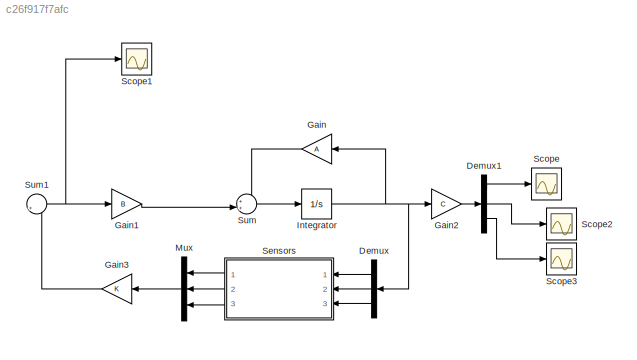
MODEL slx_c26f917f7afc
KIND model
CONFIG AbsTol = auto
CONFIG EnableMultiTasking = off
CONFIG FixedStep = auto
CONFIG MaxStep = 0.00001
CONFIG MinStep = auto
CONFIG RelTol = 1e-8
CONFIG SampleTimeConstraint = Unconstrained
CONFIG Solver = ode45
CONFIG SolverName = ode45
CONFIG StartTime = 0.0
CONFIG StopTime = 10
BLOCK [Demux] Demux
  DisplayOption = bar
  Outputs = 3
  Ports = [1, 3]
BLOCK [Demux] Demux1
  DisplayOption = bar
  Outputs = 3
  Ports = [1, 3]
BLOCK [Gain] Gain
  Gain = A
  Multiplication = Matrix(K*u)
  OutDataTypeStr = Inherit: Inherit via internal rule
  ParamDataTypeStr = Inherit: Inherit via internal rule
  SaturateOnIntegerOverflow = off
BLOCK [Gain] Gain1
  Gain = B
  Multiplication = Matrix(K*u)
  OutDataTypeStr = Inherit: Inherit via internal rule
  ParamDataTypeStr = Inherit: Inherit via internal rule
  SaturateOnIntegerOverflow = off
BLOCK [Gain] Gain2
  Gain = C
  Multiplication = Matrix(K*u)
  OutDataTypeStr = Inherit: Inherit via internal rule
  ParamDataTypeStr = Inherit: Inherit via internal rule
  SaturateOnIntegerOverflow = off
BLOCK [Gain] Gain3
  Gain = K
  Multiplication = Matrix(K*u)
  OutDataTypeStr = Inherit: Inherit via internal rule
  ParamDataTypeStr = Inherit: Inherit via internal rule
  SaturateOnIntegerOverflow = off
BLOCK [Integrator] Integrator
  InitialCondition = [deg2rad(5); 0; 0]
  Ports = [1, 1]
BLOCK [Mux] Mux
  DisplayOption = bar
  Inputs = 3
  Ports = [3, 1]
BLOCK [Scope] Scope
  Floating = off
  NumInputPorts = 1
  Ports = [1]
  ScopeSpecificationString = Simulink.scopes.TimeScopeBlockCfg('CurrentConfiguration', extmgr.ConfigurationSet(extmgr.Configuration('Core','General UI',true),extmgr.Configuration('Core','Source UI',true),extmgr.Configuration('Sources','WiredSimulink',true),extmgr.Configuration('Visuals','Time Domain',true,'SerializedDisplays',{struct('MinYLimReal','-0.03505','MaxYLimReal','0.00896','YLabelReal','','MinYLimMag','0.00000','MaxY...<+1372ch>
BLOCK [Scope] Scope1
  Floating = off
  NumInputPorts = 1
  Ports = [1]
  ScopeSpecificationString = Simulink.scopes.TimeScopeBlockCfg('CurrentConfiguration', extmgr.ConfigurationSet(extmgr.Configuration('Core','General UI',true),extmgr.Configuration('Core','Source UI',true),extmgr.Configuration('Sources','WiredSimulink',true,'DataLoggingVariableName','ScopeData1'),extmgr.Configuration('Visuals','Time Domain',true,'SerializedDisplays',{struct('MinYLimReal','-0.24512','MaxYLimReal','0.54632','YLab...<+1388ch>
BLOCK [Scope] Scope2
  Floating = off
  NumInputPorts = 1
  Ports = [1]
  ScopeSpecificationString = Simulink.scopes.TimeScopeBlockCfg('CurrentConfiguration', extmgr.ConfigurationSet(extmgr.Configuration('Core','General UI',true),extmgr.Configuration('Core','Source UI',true),extmgr.Configuration('Sources','WiredSimulink',true,'DataLoggingVariableName','ScopeData2'),extmgr.Configuration('Visuals','Time Domain',true,'SerializedDisplays',{struct('MinYLimReal','-1.15518','MaxYLimReal','0.25234','YLab...<+1438ch>
BLOCK [Scope] Scope3
  Floating = off
  NumInputPorts = 1
  Ports = [1]
  ScopeSpecificationString = Simulink.scopes.TimeScopeBlockCfg('CurrentConfiguration', extmgr.ConfigurationSet(extmgr.Configuration('Core','General UI',true),extmgr.Configuration('Core','Source UI',true),extmgr.Configuration('Sources','WiredSimulink',true,'DataLoggingVariableName','ScopeData3'),extmgr.Configuration('Visuals','Time Domain',true,'SerializedDisplays',{struct('MinYLimReal','-2.94296','MaxYLimReal','26.48662','YLa...<+1415ch>
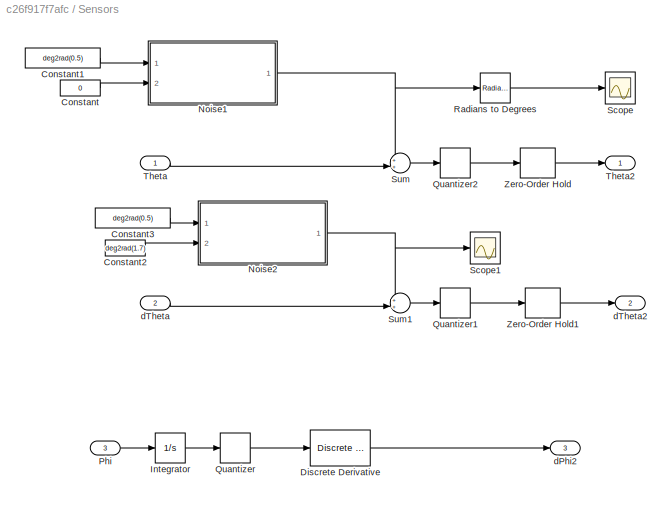
BLOCK [SubSystem] Sensors
  Ports = [3, 3]
  RequestExecContextInheritance = off
BLOCK [Constant] Sensors/Constant
  Value = 0
BLOCK [Constant] Sensors/Constant1
  Value = deg2rad(0.5)
BLOCK [Constant] Sensors/Constant2
  Value = deg2rad(1.7)
BLOCK [Constant] Sensors/Constant3
  Value = deg2rad(0.5)
BLOCK [Reference] Sensors/Discrete Derivative  REF=simulink/Discrete/Discrete Derivative
  Ports = [1, 1]
  SourceBlock = simulink/Discrete/Discrete Derivative
  SourceProductBaseCode = SL
  SourceProductName = Simulink
  SourceType = Discrete Derivative
BLOCK [Integrator] Sensors/Integrator
  Ports = [1, 1]
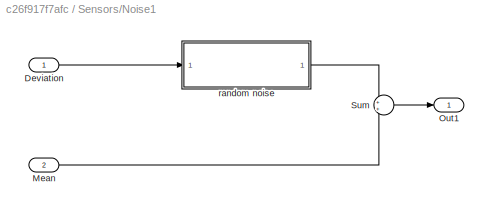
BLOCK [SubSystem] Sensors/Noise1
  Ports = [2, 1]
  RequestExecContextInheritance = off
BLOCK [Inport] Sensors/Noise1/Deviation
  IconDisplay = Port number
BLOCK [Inport] Sensors/Noise1/Mean
  IconDisplay = Port number
  Port = 2
BLOCK [Outport] Sensors/Noise1/Out1
  IconDisplay = Port number
BLOCK [Sum] Sensors/Noise1/Sum
  IconShape = round
  InputSameDT = off
  OutDataTypeStr = Inherit: Inherit via internal rule
  Ports = [2, 1]
  SaturateOnIntegerOverflow = off
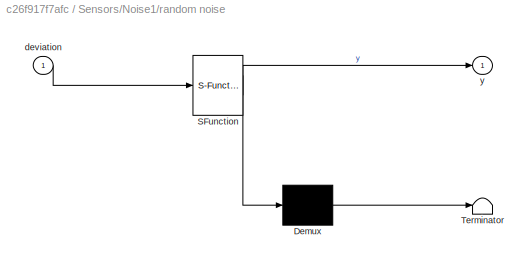
BLOCK [SubSystem] Sensors/Noise1/random noise
  ErrorFcn = Stateflow.Translate.translate
  PermitHierarchicalResolution = ExplicitOnly
  Ports = [1, 1]
  RequestExecContextInheritance = off
  SFBlockType = MATLAB Function
  SystemSampleTime = 0.001
  TreatAsAtomicUnit = on
BLOCK [Demux] Sensors/Noise1/random noise/ Demux 
  Outputs = 1
  Ports = [1, 1]
BLOCK [S-Function] Sensors/Noise1/random noise/ SFunction 
  EnableBusSupport = on
  FunctionName = sf_sfun
  PortCounts = [1 2]
  Ports = [1, 2]
  SFcnIsStateOwnerBlock = off
  SFunctionDeploymentMode = off
  Tag = Stateflow S-Function 2
BLOCK [Terminator] Sensors/Noise1/random noise/ Terminator 
BLOCK [Inport] Sensors/Noise1/random noise/deviation
  IconDisplay = Port number
BLOCK [Outport] Sensors/Noise1/random noise/y
  IconDisplay = Port number
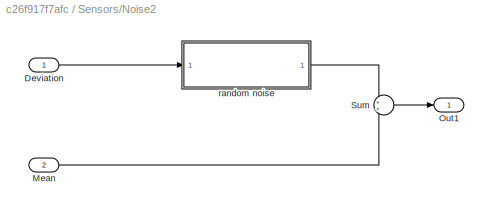
BLOCK [SubSystem] Sensors/Noise2
  Ports = [2, 1]
  RequestExecContextInheritance = off
BLOCK [Inport] Sensors/Noise2/Deviation
  IconDisplay = Port number
BLOCK [Inport] Sensors/Noise2/Mean
  IconDisplay = Port number
  Port = 2
BLOCK [Outport] Sensors/Noise2/Out1
  IconDisplay = Port number
BLOCK [Sum] Sensors/Noise2/Sum
  IconShape = round
  InputSameDT = off
  OutDataTypeStr = Inherit: Inherit via internal rule
  Ports = [2, 1]
  SaturateOnIntegerOverflow = off
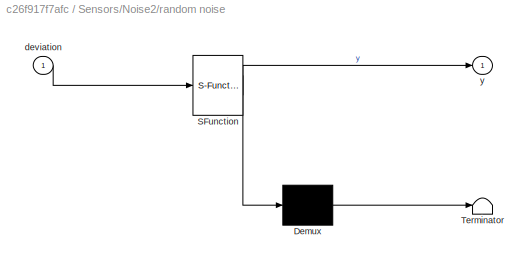
BLOCK [SubSystem] Sensors/Noise2/random noise
  ErrorFcn = Stateflow.Translate.translate
  PermitHierarchicalResolution = ExplicitOnly
  Ports = [1, 1]
  RequestExecContextInheritance = off
  SFBlockType = MATLAB Function
  SystemSampleTime = 0.001
  TreatAsAtomicUnit = on
BLOCK [Demux] Sensors/Noise2/random noise/ Demux 
  Outputs = 1
  Ports = [1, 1]
BLOCK [S-Function] Sensors/Noise2/random noise/ SFunction 
  EnableBusSupport = on
  FunctionName = sf_sfun
  PortCounts = [1 2]
  Ports = [1, 2]
  SFcnIsStateOwnerBlock = off
  SFunctionDeploymentMode = off
  Tag = Stateflow S-Function 1
BLOCK [Terminator] Sensors/Noise2/random noise/ Terminator 
BLOCK [Inport] Sensors/Noise2/random noise/deviation
  IconDisplay = Port number
BLOCK [Outport] Sensors/Noise2/random noise/y
  IconDisplay = Port number
BLOCK [Inport] Sensors/Phi
  IconDisplay = Port number
  Port = 3
BLOCK [Quantizer] Sensors/Quantizer
  QuantizationInterval = 0.00001
BLOCK [Quantizer] Sensors/Quantizer1
  QuantizationInterval = 0.00001
BLOCK [Quantizer] Sensors/Quantizer2
  QuantizationInterval = 0.00001
BLOCK [Reference] Sensors/Radians to Degrees  REF=simulink_extras/Transformations/Radians
to Degrees
  Ports = [1, 1]
  SourceBlock = simulink_extras/Transformations/Radians\nto Degrees
  SourceProductBaseCode = SL
  SourceProductName = Simulink
  SourceType = RadiansToDegrees
BLOCK [Scope] Sensors/Scope
  Floating = off
  NumInputPorts = 1
  Ports = [1]
  ScopeSpecificationString = Simulink.scopes.TimeScopeBlockCfg('CurrentConfiguration', extmgr.ConfigurationSet(extmgr.Configuration('Core','General UI',true),extmgr.Configuration('Core','Source UI',true),extmgr.Configuration('Sources','WiredSimulink',true,'DataLoggingVariableName','ScopeData1'),extmgr.Configuration('Visuals','Time Domain',true,'SerializedDisplays',{struct('MinYLimReal','-2.32863','MaxYLimReal','2.24673','YLab...<+1402ch>
BLOCK [Scope] Sensors/Scope1
  Floating = off
  NumInputPorts = 1
  Ports = [1]
  ScopeSpecificationString = Simulink.scopes.TimeScopeBlockCfg('CurrentConfiguration', extmgr.ConfigurationSet(extmgr.Configuration('Core','General UI',true),extmgr.Configuration('Core','Source UI',true),extmgr.Configuration('Sources','WiredSimulink',true,'DataLoggingVariableName','ScopeData1'),extmgr.Configuration('Visuals','Time Domain',true,'SerializedDisplays',{struct('MinYLimReal','-0.01097','MaxYLimReal','0.06888','YLab...<+1365ch>
BLOCK [Sum] Sensors/Sum
  IconShape = round
  InputSameDT = off
  Inputs = ++|
  OutDataTypeStr = Inherit: Inherit via internal rule
  Ports = [2, 1]
  SaturateOnIntegerOverflow = off
BLOCK [Sum] Sensors/Sum1
  IconShape = round
  InputSameDT = off
  Inputs = ++|
  OutDataTypeStr = Inherit: Inherit via internal rule
  Ports = [2, 1]
  SaturateOnIntegerOverflow = off
BLOCK [Inport] Sensors/Theta
  IconDisplay = Port number
BLOCK [Outport] Sensors/Theta2
  IconDisplay = Port number
BLOCK [ZeroOrderHold] Sensors/Zero-Order Hold
  SampleTime = 1/1000
BLOCK [ZeroOrderHold] Sensors/Zero-Order Hold1
  SampleTime = 1/1000
BLOCK [Outport] Sensors/dPhi2
  IconDisplay = Port number
  Port = 3
BLOCK [Inport] Sensors/dTheta
  IconDisplay = Port number
  Port = 2
BLOCK [Outport] Sensors/dTheta2
  IconDisplay = Port number
  Port = 2
BLOCK [Sum] Sum
  IconShape = round
  InputSameDT = off
  Inputs = ++|
  OutDataTypeStr = Inherit: Inherit via internal rule
  Ports = [2, 1]
  SaturateOnIntegerOverflow = off
BLOCK [Sum] Sum1
  IconShape = round
  InputSameDT = off
  Inputs = |+-
  OutDataTypeStr = Inherit: Inherit via internal rule
  Ports = [2, 1]
  SaturateOnIntegerOverflow = off
LINE Demux1:1 -> Scope:1
LINE Demux1:2 -> Scope2:1
LINE Demux1:3 -> Scope3:1
LINE Demux:1 -> Sensors:1
LINE Demux:2 -> Sensors:2
LINE Demux:3 -> Sensors:3
LINE Gain1:1 -> Sum:2
LINE Gain2:1 -> Demux1:1
LINE Gain3:1 -> Sum1:2
LINE Gain:1 -> Sum:1
NET Integrator:1 -> Demux:1, Gain2:1, Gain:1
LINE Mux:1 -> Gain3:1
LINE Sensors/Constant1:1 -> Sensors/Noise1:1
LINE Sensors/Constant2:1 -> Sensors/Noise2:2
LINE Sensors/Constant3:1 -> Sensors/Noise2:1
LINE Sensors/Constant:1 -> Sensors/Noise1:2
LINE Sensors/Discrete Derivative:1 -> Sensors/dPhi2:1
LINE Sensors/Integrator:1 -> Sensors/Quantizer:1
LINE Sensors/Noise1/Deviation:1 -> Sensors/Noise1/random noise:1
LINE Sensors/Noise1/Mean:1 -> Sensors/Noise1/Sum:2
LINE Sensors/Noise1/Sum:1 -> Sensors/Noise1/Out1:1
LINE Sensors/Noise1/random noise:1 -> Sensors/Noise1/Sum:1
NET Sensors/Noise1:1 -> Sensors/Radians to Degrees:1, Sensors/Sum:1
LINE Sensors/Noise2/Deviation:1 -> Sensors/Noise2/random noise:1
LINE Sensors/Noise2/Mean:1 -> Sensors/Noise2/Sum:2
LINE Sensors/Noise2/Sum:1 -> Sensors/Noise2/Out1:1
LINE Sensors/Noise2/random noise:1 -> Sensors/Noise2/Sum:1
NET Sensors/Noise2:1 -> Sensors/Scope1:1, Sensors/Sum1:1
LINE Sensors/Phi:1 -> Sensors/Integrator:1
LINE Sensors/Quantizer1:1 -> Sensors/Zero-Order Hold1:1
LINE Sensors/Quantizer2:1 -> Sensors/Zero-Order Hold:1
LINE Sensors/Quantizer:1 -> Sensors/Discrete Derivative:1
LINE Sensors/Radians to Degrees:1 -> Sensors/Scope:1
LINE Sensors/Sum1:1 -> Sensors/Quantizer1:1
LINE Sensors/Sum:1 -> Sensors/Quantizer2:1
LINE Sensors/Theta:1 -> Sensors/Sum:2
LINE Sensors/Zero-Order Hold1:1 -> Sensors/dTheta2:1
LINE Sensors/Zero-Order Hold:1 -> Sensors/Theta2:1
LINE Sensors/dTheta:1 -> Sensors/Sum1:2
LINE Sensors:1 -> Mux:1
LINE Sensors:2 -> Mux:2
LINE Sensors:3 -> Mux:3
NET Sum1:1 -> Gain1:1, Scope1:1
LINE Sum:1 -> Integrator:1
note: NET lines group one-source signal fan-out (src -> all destinations, sorted); 1:1 wires keep LINE
CHART Sensors/Noise2/random noise states=1 transitions=1
  STATE_LABEL 'eML_blk_kernel()'
  STATE_LABEL 'SCRIPT:\nfunction y = fcn(deviation)\n\ny = (deviation*randn());\n'
CHART Sensors/Noise1/random noise states=1 transitions=1
  STATE_LABEL 'eML_blk_kernel()'
  STATE_LABEL 'SCRIPT:\nfunction y = fcn(deviation)\n\ny = (deviation*randn());\n'
